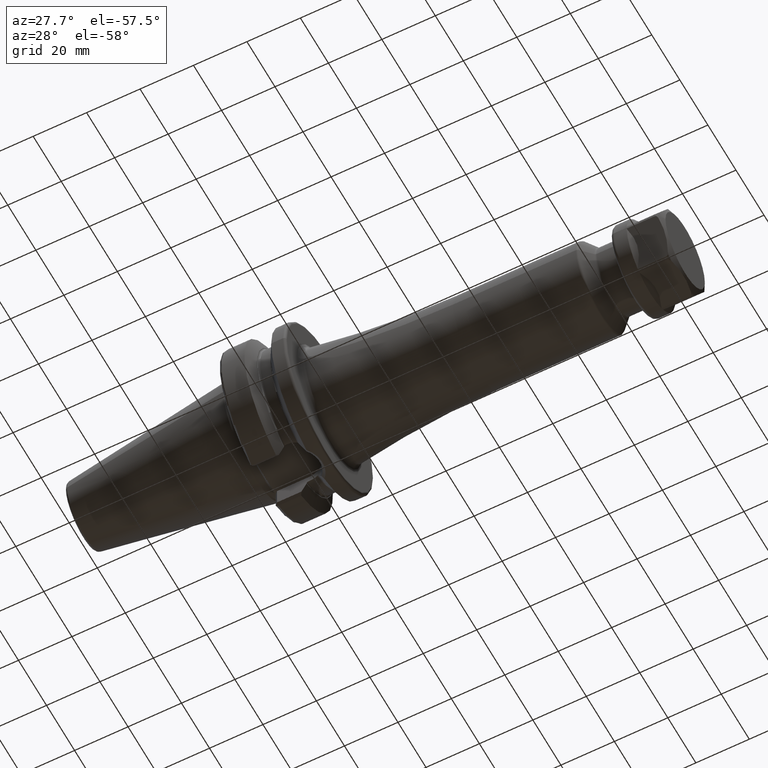
[diagram: clean part render]
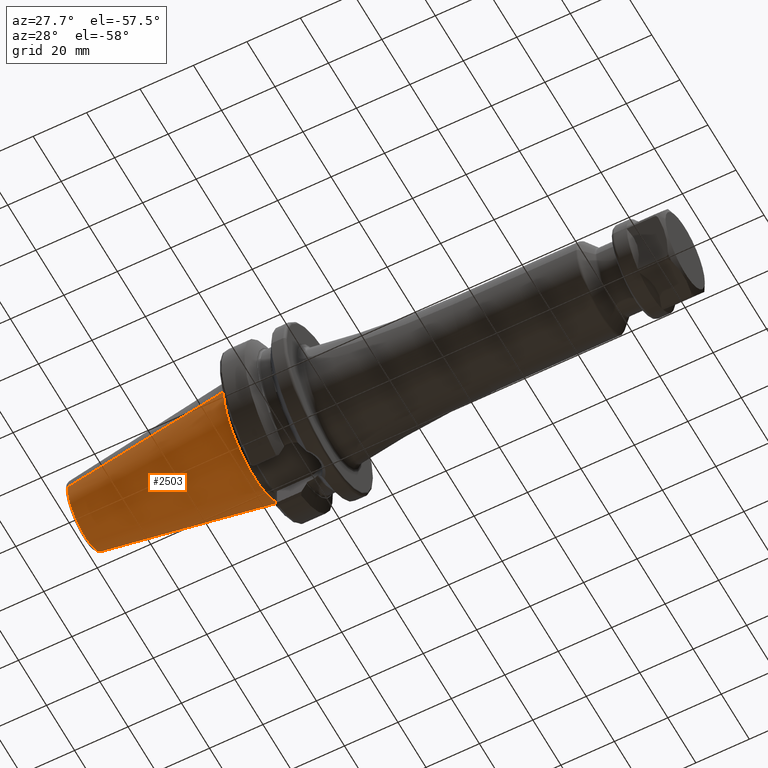
[diagram: same view with one face highlighted and labeled with its STEP entity id]
A machine part, auxiliary view. The second image highlights one B-rep face of the part: STEP entity #2503.
In plain terms, the highlighted conical surface has half-angle 8.298 deg.
Its self-contained STEP definition (entity closure, byte-faithful):
#785=DIRECTION('',(-9.895312636440E-1,-1.443186691705E-1,0.E0));
#786=VECTOR('',#785,6.394703124850E1);
#787=CARTESIAN_POINT('',(-1.266732031557E0,2.204025284980E1,0.E0));
#788=LINE('',#787,#786);
#789=DIRECTION('',(-9.895312636440E-1,1.443186691705E-1,0.E0));
#790=VECTOR('',#789,6.394703124850E1);
#791=CARTESIAN_POINT('',(-1.266732031557E0,-2.204025284980E1,0.E0));
#792=LINE('',#791,#790);
#793=CARTESIAN_POINT('',(-1.266732031557E0,0.E0,0.E0));
#794=DIRECTION('',(-1.E0,0.E0,0.E0));
#795=DIRECTION('',(0.E0,1.E0,0.E0));
#796=AXIS2_PLACEMENT_3D('',#793,#794,#795);
#808=CARTESIAN_POINT('',(-6.454431866917E1,0.E0,0.E0));
#809=DIRECTION('',(-1.E0,0.E0,0.E0));
#810=DIRECTION('',(0.E0,1.E0,0.E0));
#811=AXIS2_PLACEMENT_3D('',#808,#809,#810);
#1246=CARTESIAN_POINT('',(-6.454431866917E1,1.281150240261E1,0.E0));
#1248=VERTEX_POINT('',#1246);
#1250=CARTESIAN_POINT('',(-6.454431866917E1,-1.281150240261E1,0.E0));
#1252=VERTEX_POINT('',#1250);
#1465=CARTESIAN_POINT('',(-1.266732031557E0,2.204025284980E1,0.E0));
#1466=VERTEX_POINT('',#1465);
#1467=CARTESIAN_POINT('',(-1.266732031557E0,-2.204025284980E1,0.E0));
#1468=VERTEX_POINT('',#1467);
#2491=CARTESIAN_POINT('',(-3.290552535036E1,0.E0,0.E0));
#2492=DIRECTION('',(1.E0,0.E0,0.E0));
#2493=DIRECTION('',(0.E0,-1.E0,0.E0));
#2494=AXIS2_PLACEMENT_3D('',#2491,#2492,#2493);
#2495=CONICAL_SURFACE('',#2494,1.742587762621E1,8.297826828206E0);
#2496=ORIENTED_EDGE('',*,*,#2481,.T.);
#2498=ORIENTED_EDGE('',*,*,#2497,.T.);
#2499=ORIENTED_EDGE('',*,*,#2484,.F.);
#2500=ORIENTED_EDGE('',*,*,#2455,.F.);
#2501=EDGE_LOOP('',(#2496,#2498,#2499,#2500));
#2502=FACE_OUTER_BOUND('',#2501,.F.);
#2503=ADVANCED_FACE('',(#2502),#2495,.T.);
#797=CIRCLE('',#796,2.204025284980E1);
#812=CIRCLE('',#811,1.281150240261E1);
#2455=EDGE_CURVE('',#1466,#1468,#797,.T.);
#2481=EDGE_CURVE('',#1466,#1248,#788,.T.);
#2484=EDGE_CURVE('',#1468,#1252,#792,.T.);
#2497=EDGE_CURVE('',#1248,#1252,#812,.T.);